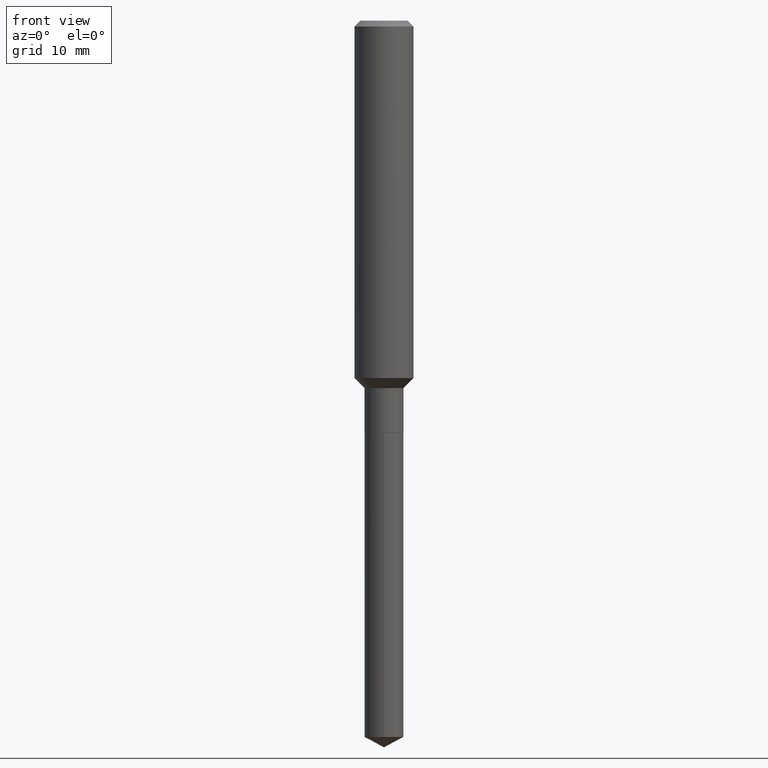
[diagram: clean part render]
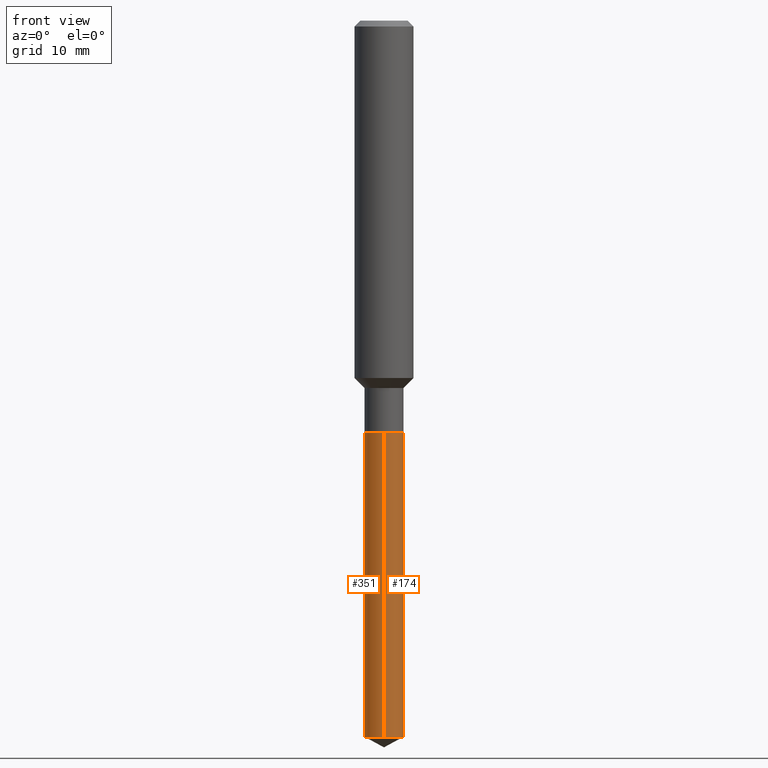
[diagram: same view with one multi-face feature highlighted, each face labeled with its STEP entity id]
A machine part, front view. The highlighted faces form ONE feature: a constant-radius fillet chain: 2 tangent blend faces with common blend radius 1.9837 mm. The faces share edges in the B-rep.
Their STEP definitions:
[1] entity #174 (Cylinder):
#11 = DIRECTION ( 'NONE',  ( -2.445385636632390677E-29, 3.491600442376394663E-15, 1.000000000000000000 ) ) ;
#15 = CARTESIAN_POINT ( 'NONE',  ( 7.021997449434832588E-29, -1.002584133692533592E-14, -2.871473493387237674 ) ) ;
#19 = CYLINDRICAL_SURFACE ( 'NONE', #354, 0.07810000000000000275 ) ;
#22 = ORIENTED_EDGE ( 'NONE', *, *, #474, .F. ) ;
#35 = DIRECTION ( 'NONE',  ( -2.445385636632390677E-29, 3.491600442376394663E-15, 1.000000000000000000 ) ) ;
#65 = CARTESIAN_POINT ( 'NONE',  ( 5.549338766286784966E-16, 0.07809999999999422959, -1.652199999999999891 ) ) ;
#80 = DIRECTION ( 'NONE',  ( -6.982962677686265133E-15, -1.000000000000000000, 3.497884755011860410E-15 ) ) ;
#82 = CIRCLE ( 'NONE', #285, 0.07810000000000000275 ) ;
#95 = CARTESIAN_POINT ( 'NONE',  ( 5.549338766287084733E-16, 0.07809999999998999687, -2.871473493387238118 ) ) ;
#117 = CARTESIAN_POINT ( 'NONE',  ( 4.040403561579081805E-29, -5.768625468036644373E-15, -1.652199999999999669 ) ) ;
#121 = EDGE_CURVE ( 'NONE', #319, #313, #152, .T. ) ;
#136 = EDGE_LOOP ( 'NONE', ( #213, #398, #22, #204 ) ) ;
#152 = LINE ( 'NONE', #155, #333 ) ;
#155 = CARTESIAN_POINT ( 'NONE',  ( -5.453693851272569087E-16, -0.07810000000000577591, -1.652199999999999447 ) ) ;
#163 = DIRECTION ( 'NONE',  ( -6.982962677686265133E-15, -1.000000000000000000, 0.000000000000000000 ) ) ;
#172 = DIRECTION ( 'NONE',  ( -2.445385636632390677E-29, 3.491600442376394663E-15, 1.000000000000000000 ) ) ;
#174 = ADVANCED_FACE ( 'NONE', ( #243 ), #19, .T. ) ;
#200 = CARTESIAN_POINT ( 'NONE',  ( 5.549338766287085720E-16, 0.07809999999999422959, -1.652199999999999891 ) ) ;
#204 = ORIENTED_EDGE ( 'NONE', *, *, #121, .F. ) ;
#213 = ORIENTED_EDGE ( 'NONE', *, *, #259, .T. ) ;
#228 = CIRCLE ( 'NONE', #276, 0.07810000000000000275 ) ;
#241 = CARTESIAN_POINT ( 'NONE',  ( 4.040403561579081805E-29, -5.768625468036644373E-15, -1.652199999999999669 ) ) ;
#243 = FACE_OUTER_BOUND ( 'NONE', #136, .T. ) ;
#256 = VERTEX_POINT ( 'NONE', #200 ) ;
#259 = EDGE_CURVE ( 'NONE', #319, #327, #228, .T. ) ;
#263 = VECTOR ( 'NONE', #172, 39.37007874015748143 ) ;
#268 = DIRECTION ( 'NONE',  ( -6.982962677686265133E-15, -1.000000000000000000, 3.497884755011860410E-15 ) ) ;
#276 = AXIS2_PLACEMENT_3D ( 'NONE', #15, #11, #163 ) ;
#285 = AXIS2_PLACEMENT_3D ( 'NONE', #117, #35, #268 ) ;
#313 = VERTEX_POINT ( 'NONE', #426 ) ;
#319 = VERTEX_POINT ( 'NONE', #331 ) ;
#327 = VERTEX_POINT ( 'NONE', #95 ) ;
#331 = CARTESIAN_POINT ( 'NONE',  ( -5.453693851272272278E-16, -0.07810000000001003639, -2.871473493387237230 ) ) ;
#333 = VECTOR ( 'NONE', #380, 39.37007874015748143 ) ;
#354 = AXIS2_PLACEMENT_3D ( 'NONE', #241, #466, #80 ) ;
#359 = LINE ( 'NONE', #65, #263 ) ;
#380 = DIRECTION ( 'NONE',  ( -2.445385636632390677E-29, 3.491600442376394663E-15, 1.000000000000000000 ) ) ;
#398 = ORIENTED_EDGE ( 'NONE', *, *, #424, .T. ) ;
#424 = EDGE_CURVE ( 'NONE', #327, #256, #359, .T. ) ;
#426 = CARTESIAN_POINT ( 'NONE',  ( -5.453693851272569087E-16, -0.07810000000000577591, -1.652199999999999447 ) ) ;
#466 = DIRECTION ( 'NONE',  ( -2.445385636632390677E-29, 3.491600442376394663E-15, 1.000000000000000000 ) ) ;
#474 = EDGE_CURVE ( 'NONE', #313, #256, #82, .T. ) ;
[2] entity #351 (Cylinder):
#17 = EDGE_LOOP ( 'NONE', ( #441, #181, #453, #450 ) ) ;
#51 = AXIS2_PLACEMENT_3D ( 'NONE', #433, #321, #322 ) ;
#58 = CYLINDRICAL_SURFACE ( 'NONE', #422, 0.07810000000000000275 ) ;
#65 = CARTESIAN_POINT ( 'NONE',  ( 5.549338766286784966E-16, 0.07809999999999422959, -1.652199999999999891 ) ) ;
#94 = CARTESIAN_POINT ( 'NONE',  ( 4.040403561579081805E-29, -5.768625468036644373E-15, -1.652199999999999669 ) ) ;
#95 = CARTESIAN_POINT ( 'NONE',  ( 5.549338766287084733E-16, 0.07809999999998999687, -2.871473493387238118 ) ) ;
#109 = CIRCLE ( 'NONE', #116, 0.07810000000000000275 ) ;
#116 = AXIS2_PLACEMENT_3D ( 'NONE', #293, #248, #175 ) ;
#121 = EDGE_CURVE ( 'NONE', #319, #313, #152, .T. ) ;
#152 = LINE ( 'NONE', #155, #333 ) ;
#155 = CARTESIAN_POINT ( 'NONE',  ( -5.453693851272569087E-16, -0.07810000000000577591, -1.652199999999999447 ) ) ;
#172 = DIRECTION ( 'NONE',  ( -2.445385636632390677E-29, 3.491600442376394663E-15, 1.000000000000000000 ) ) ;
#175 = DIRECTION ( 'NONE',  ( -6.982962677686265133E-15, -1.000000000000000000, 0.000000000000000000 ) ) ;
#181 = ORIENTED_EDGE ( 'NONE', *, *, #345, .T. ) ;
#200 = CARTESIAN_POINT ( 'NONE',  ( 5.549338766287085720E-16, 0.07809999999999422959, -1.652199999999999891 ) ) ;
#205 = EDGE_CURVE ( 'NONE', #256, #313, #470, .T. ) ;
#219 = DIRECTION ( 'NONE',  ( -6.982962677686265133E-15, -1.000000000000000000, 3.497884755011860410E-15 ) ) ;
#248 = DIRECTION ( 'NONE',  ( -2.445385636632390677E-29, 3.491600442376394663E-15, 1.000000000000000000 ) ) ;
#256 = VERTEX_POINT ( 'NONE', #200 ) ;
#263 = VECTOR ( 'NONE', #172, 39.37007874015748143 ) ;
#287 = DIRECTION ( 'NONE',  ( -2.445385636632390677E-29, 3.491600442376394663E-15, 1.000000000000000000 ) ) ;
#293 = CARTESIAN_POINT ( 'NONE',  ( 7.021997449434832588E-29, -1.002584133692533592E-14, -2.871473493387237674 ) ) ;
#313 = VERTEX_POINT ( 'NONE', #426 ) ;
#319 = VERTEX_POINT ( 'NONE', #331 ) ;
#321 = DIRECTION ( 'NONE',  ( -2.445385636632390677E-29, 3.491600442376394663E-15, 1.000000000000000000 ) ) ;
#322 = DIRECTION ( 'NONE',  ( -6.982962677686265133E-15, -1.000000000000000000, 3.497884755011860410E-15 ) ) ;
#327 = VERTEX_POINT ( 'NONE', #95 ) ;
#331 = CARTESIAN_POINT ( 'NONE',  ( -5.453693851272272278E-16, -0.07810000000001003639, -2.871473493387237230 ) ) ;
#333 = VECTOR ( 'NONE', #380, 39.37007874015748143 ) ;
#345 = EDGE_CURVE ( 'NONE', #327, #319, #109, .T. ) ;
#351 = ADVANCED_FACE ( 'NONE', ( #472 ), #58, .T. ) ;
#359 = LINE ( 'NONE', #65, #263 ) ;
#380 = DIRECTION ( 'NONE',  ( -2.445385636632390677E-29, 3.491600442376394663E-15, 1.000000000000000000 ) ) ;
#422 = AXIS2_PLACEMENT_3D ( 'NONE', #94, #287, #219 ) ;
#424 = EDGE_CURVE ( 'NONE', #327, #256, #359, .T. ) ;
#426 = CARTESIAN_POINT ( 'NONE',  ( -5.453693851272569087E-16, -0.07810000000000577591, -1.652199999999999447 ) ) ;
#433 = CARTESIAN_POINT ( 'NONE',  ( 4.040403561579081805E-29, -5.768625468036644373E-15, -1.652199999999999669 ) ) ;
#441 = ORIENTED_EDGE ( 'NONE', *, *, #424, .F. ) ;
#450 = ORIENTED_EDGE ( 'NONE', *, *, #205, .F. ) ;
#453 = ORIENTED_EDGE ( 'NONE', *, *, #121, .T. ) ;
#470 = CIRCLE ( 'NONE', #51, 0.07810000000000000275 ) ;
#472 = FACE_OUTER_BOUND ( 'NONE', #17, .T. ) ;